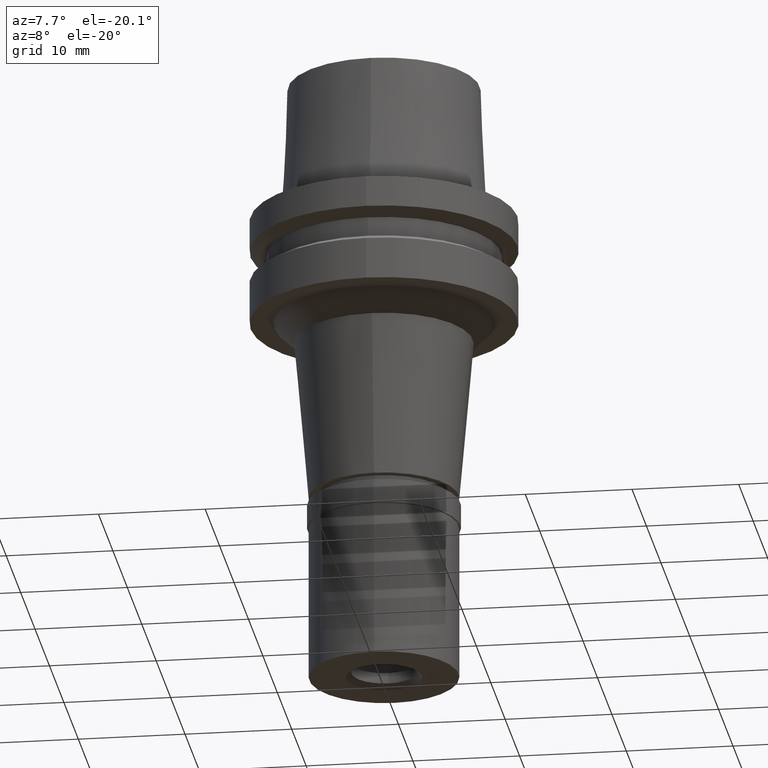
[diagram: clean part render]
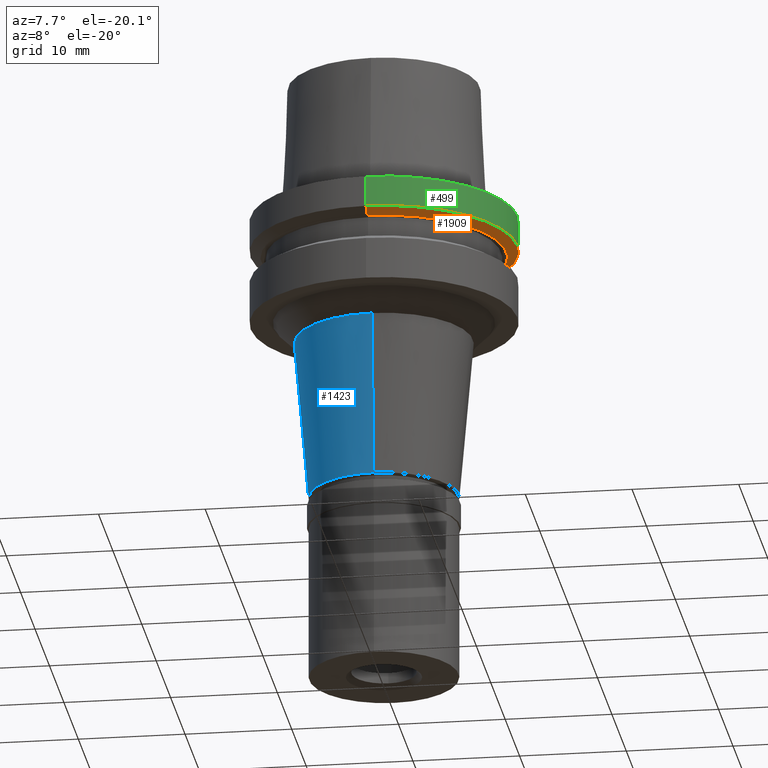
[diagram: same view with three faces highlighted in distinct colors, each labeled with its STEP entity id]
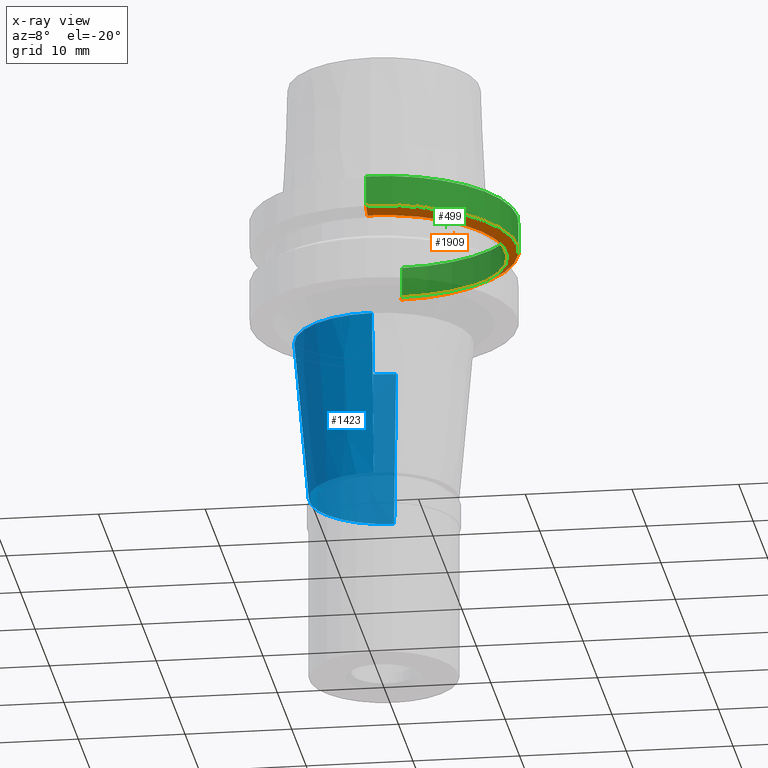
[diagram: x-ray of the same camera — body ghosted, the three highlighted faces saturated]
A machine part, auxiliary view with three faces highlighted in distinct colors.
The next image is the same camera in x-ray (body ghosted, the three faces saturated) — at least one of them is partly hidden behind the body in this view.
Their STEP definitions:

[orange] entity #1909 — the highlighted conical surface has half-angle 60 deg.
#46 = DIRECTION ( 'NONE',  ( 0.0000000000000000000, 1.000000000000000000, 0.0000000000000000000 ) ) ;
#181 = DIRECTION ( 'NONE',  ( 0.0000000000000000000, 0.0000000000000000000, 1.000000000000000000 ) ) ;
#213 = CARTESIAN_POINT ( 'NONE',  ( 0.0000000000000000000, 12.50000000000000000, -2.912286759727999996 ) ) ;
#259 = AXIS2_PLACEMENT_3D ( 'NONE', #2266, #1042, #46 ) ;
#302 = CARTESIAN_POINT ( 'NONE',  ( 0.0000000000000000000, 0.0000000000000000000, -2.912286759726999907 ) ) ;
#322 = DIRECTION ( 'NONE',  ( 0.0000000000000000000, -1.000000000000000000, 0.0000000000000000000 ) ) ;
#496 = DIRECTION ( 'NONE',  ( 0.0000000000000000000, 0.8660254037846089048, -0.4999999999997049027 ) ) ;
#510 = LINE ( 'NONE', #890, #1507 ) ;
#516 = CARTESIAN_POINT ( 'NONE',  ( 0.0000000000000000000, 11.48205080757000118, -3.499999999997999822 ) ) ;
#541 = AXIS2_PLACEMENT_3D ( 'NONE', #302, #1144, #322 ) ;
#740 = EDGE_CURVE ( 'NONE', #1518, #808, #937, .T. ) ;
#761 = CIRCLE ( 'NONE', #1581, 11.48205080757000118 ) ;
#808 = VERTEX_POINT ( 'NONE', #213 ) ;
#819 = FACE_OUTER_BOUND ( 'NONE', #1550, .T. ) ;
#890 = CARTESIAN_POINT ( 'NONE',  ( 0.0000000000000000000, -12.50000000000000000, -2.912286759727999996 ) ) ;
#937 = CIRCLE ( 'NONE', #541, 12.50000000000000000 ) ;
#1042 = DIRECTION ( 'NONE',  ( 0.0000000000000000000, 0.0000000000000000000, 1.000000000000000000 ) ) ;
#1112 = DIRECTION ( 'NONE',  ( 0.0000000000000000000, -0.8660254037846089048, -0.4999999999997049027 ) ) ;
#1144 = DIRECTION ( 'NONE',  ( 0.0000000000000000000, 0.0000000000000000000, 1.000000000000000000 ) ) ;
#1157 = VERTEX_POINT ( 'NONE', #516 ) ;
#1272 = CONICAL_SURFACE ( 'NONE', #259, 11.99102540378000192, 1.047197551196400456 ) ;
#1437 = EDGE_CURVE ( 'NONE', #808, #1157, #1542, .T. ) ;
#1503 = VERTEX_POINT ( 'NONE', #1764 ) ;
#1507 = VECTOR ( 'NONE', #496, 1000.000000000000114 ) ;
#1518 = VERTEX_POINT ( 'NONE', #1718 ) ;
#1542 = LINE ( 'NONE', #2582, #2620 ) ;
#1550 = EDGE_LOOP ( 'NONE', ( #2339, #2365, #1580, #2611 ) ) ;
#1580 = ORIENTED_EDGE ( 'NONE', *, *, #2507, .T. ) ;
#1581 = AXIS2_PLACEMENT_3D ( 'NONE', #2248, #181, #2453 ) ;
#1582 = EDGE_CURVE ( 'NONE', #1518, #1503, #510, .T. ) ;
#1718 = CARTESIAN_POINT ( 'NONE',  ( 0.0000000000000000000, -12.50000000000000000, -2.912286759727999996 ) ) ;
#1764 = CARTESIAN_POINT ( 'NONE',  ( 0.0000000000000000000, -11.48205080757000118, -3.499999999997000177 ) ) ;
#1909 = ADVANCED_FACE ( 'NONE', ( #819 ), #1272, .T. ) ;
#2248 = CARTESIAN_POINT ( 'NONE',  ( 0.0000000000000000000, 0.0000000000000000000, -3.499999999997000177 ) ) ;
#2266 = CARTESIAN_POINT ( 'NONE',  ( 0.0000000000000000000, 0.0000000000000000000, -3.206143379862000042 ) ) ;
#2339 = ORIENTED_EDGE ( 'NONE', *, *, #740, .F. ) ;
#2365 = ORIENTED_EDGE ( 'NONE', *, *, #1582, .T. ) ;
#2453 = DIRECTION ( 'NONE',  ( 0.0000000000000000000, -1.000000000000000000, 0.0000000000000000000 ) ) ;
#2507 = EDGE_CURVE ( 'NONE', #1503, #1157, #761, .T. ) ;
#2582 = CARTESIAN_POINT ( 'NONE',  ( 0.0000000000000000000, 12.50000000000000000, -2.912286759727999996 ) ) ;
#2611 = ORIENTED_EDGE ( 'NONE', *, *, #1437, .F. ) ;
#2620 = VECTOR ( 'NONE', #1112, 1000.000000000000114 ) ;

[blue] entity #1423 — the highlighted conical surface has half-angle 5 deg.
#50 = LINE ( 'NONE', #1861, #1609 ) ;
#137 = DIRECTION ( 'NONE',  ( 0.0000000000000000000, -1.000000000000000000, 0.0000000000000000000 ) ) ;
#266 = DIRECTION ( 'NONE',  ( 0.0000000000000000000, 0.0000000000000000000, 1.000000000000000000 ) ) ;
#272 = CARTESIAN_POINT ( 'NONE',  ( 0.0000000000000000000, 7.000000000000000000, -27.30000000000000071 ) ) ;
#333 = DIRECTION ( 'NONE',  ( 0.0000000000000000000, -0.08715574274767391716, -0.9961946980917442129 ) ) ;
#357 = VECTOR ( 'NONE', #333, 1000.000000000000000 ) ;
#431 = ORIENTED_EDGE ( 'NONE', *, *, #2188, .T. ) ;
#477 = VERTEX_POINT ( 'NONE', #272 ) ;
#535 = DIRECTION ( 'NONE',  ( 0.0000000000000000000, 1.000000000000000000, 0.0000000000000000000 ) ) ;
#558 = DIRECTION ( 'NONE',  ( 0.0000000000000000000, 0.0000000000000000000, 1.000000000000000000 ) ) ;
#599 = DIRECTION ( 'NONE',  ( 0.0000000000000000000, 1.000000000000000000, 0.0000000000000000000 ) ) ;
#618 = CONICAL_SURFACE ( 'NONE', #1185, 7.669288275972999891, 0.08726646259969973729 ) ;
#736 = FACE_OUTER_BOUND ( 'NONE', #821, .T. ) ;
#755 = CARTESIAN_POINT ( 'NONE',  ( 0.0000000000000000000, 8.338576551946999871, -12.00000000000000000 ) ) ;
#774 = VERTEX_POINT ( 'NONE', #1643 ) ;
#793 = CARTESIAN_POINT ( 'NONE',  ( 0.0000000000000000000, 0.0000000000000000000, -12.00000000000000000 ) ) ;
#821 = EDGE_LOOP ( 'NONE', ( #2540, #1439, #2100, #431 ) ) ;
#1055 = AXIS2_PLACEMENT_3D ( 'NONE', #793, #2001, #137 ) ;
#1185 = AXIS2_PLACEMENT_3D ( 'NONE', #1748, #266, #535 ) ;
#1191 = CARTESIAN_POINT ( 'NONE',  ( 0.0000000000000000000, 8.338576551946999871, -12.00000000000000000 ) ) ;
#1264 = EDGE_CURVE ( 'NONE', #774, #1843, #50, .T. ) ;
#1353 = CIRCLE ( 'NONE', #1055, 8.338576551946999871 ) ;
#1423 = ADVANCED_FACE ( 'NONE', ( #736 ), #618, .T. ) ;
#1439 = ORIENTED_EDGE ( 'NONE', *, *, #1264, .F. ) ;
#1609 = VECTOR ( 'NONE', #2079, 1000.000000000000000 ) ;
#1643 = CARTESIAN_POINT ( 'NONE',  ( 0.0000000000000000000, -8.338576551946999871, -12.00000000000000000 ) ) ;
#1682 = AXIS2_PLACEMENT_3D ( 'NONE', #2436, #558, #599 ) ;
#1709 = EDGE_CURVE ( 'NONE', #774, #1768, #1353, .T. ) ;
#1748 = CARTESIAN_POINT ( 'NONE',  ( 0.0000000000000000000, 0.0000000000000000000, -19.65000000000000213 ) ) ;
#1767 = LINE ( 'NONE', #755, #357 ) ;
#1768 = VERTEX_POINT ( 'NONE', #1191 ) ;
#1843 = VERTEX_POINT ( 'NONE', #2510 ) ;
#1861 = CARTESIAN_POINT ( 'NONE',  ( 0.0000000000000000000, -8.338576551946999871, -12.00000000000000000 ) ) ;
#2001 = DIRECTION ( 'NONE',  ( 0.0000000000000000000, 0.0000000000000000000, -1.000000000000000000 ) ) ;
#2033 = CIRCLE ( 'NONE', #1682, 7.000000000000000000 ) ;
#2079 = DIRECTION ( 'NONE',  ( 0.0000000000000000000, 0.08715574274767391716, -0.9961946980917442129 ) ) ;
#2100 = ORIENTED_EDGE ( 'NONE', *, *, #1709, .T. ) ;
#2188 = EDGE_CURVE ( 'NONE', #1768, #477, #1767, .T. ) ;
#2380 = EDGE_CURVE ( 'NONE', #477, #1843, #2033, .T. ) ;
#2436 = CARTESIAN_POINT ( 'NONE',  ( 0.0000000000000000000, 0.0000000000000000000, -27.30000000000000071 ) ) ;
#2510 = CARTESIAN_POINT ( 'NONE',  ( 0.0000000000000000000, -7.000000000000000000, -27.30000000000000071 ) ) ;
#2540 = ORIENTED_EDGE ( 'NONE', *, *, #2380, .T. ) ;

[green] entity #499 — the highlighted cylindrical surface (partial cylindrical patch) has radius 12.5 mm, axis along (0, 0, 1).
#41 = FACE_OUTER_BOUND ( 'NONE', #925, .T. ) ;
#54 = CARTESIAN_POINT ( 'NONE',  ( 0.0000000000000000000, 0.0000000000000000000, -43.70000000000000284 ) ) ;
#213 = CARTESIAN_POINT ( 'NONE',  ( 0.0000000000000000000, 12.50000000000000000, -2.912286759727999996 ) ) ;
#302 = CARTESIAN_POINT ( 'NONE',  ( 0.0000000000000000000, 0.0000000000000000000, -2.912286759726999907 ) ) ;
#322 = DIRECTION ( 'NONE',  ( 0.0000000000000000000, -1.000000000000000000, 0.0000000000000000000 ) ) ;
#461 = CYLINDRICAL_SURFACE ( 'NONE', #2047, 12.50000000000000000 ) ;
#499 = ADVANCED_FACE ( 'NONE', ( #41 ), #461, .T. ) ;
#526 = AXIS2_PLACEMENT_3D ( 'NONE', #1139, #2162, #1170 ) ;
#541 = AXIS2_PLACEMENT_3D ( 'NONE', #302, #1144, #322 ) ;
#632 = ORIENTED_EDGE ( 'NONE', *, *, #740, .T. ) ;
#740 = EDGE_CURVE ( 'NONE', #1518, #808, #937, .T. ) ;
#743 = ORIENTED_EDGE ( 'NONE', *, *, #2027, .F. ) ;
#757 = EDGE_CURVE ( 'NONE', #2019, #1518, #1412, .T. ) ;
#759 = VERTEX_POINT ( 'NONE', #824 ) ;
#787 = CIRCLE ( 'NONE', #526, 12.50000000000000000 ) ;
#808 = VERTEX_POINT ( 'NONE', #213 ) ;
#812 = DIRECTION ( 'NONE',  ( 0.0000000000000000000, 2.445909868662999674E-13, -1.000000000000000000 ) ) ;
#824 = CARTESIAN_POINT ( 'NONE',  ( 0.0000000000000000000, 12.50000000000000000, 3.552713678800999489E-14 ) ) ;
#882 = DIRECTION ( 'NONE',  ( 0.0000000000000000000, 0.0000000000000000000, 1.000000000000000000 ) ) ;
#925 = EDGE_LOOP ( 'NONE', ( #1346, #1770, #632, #743 ) ) ;
#937 = CIRCLE ( 'NONE', #541, 12.50000000000000000 ) ;
#1139 = CARTESIAN_POINT ( 'NONE',  ( 0.0000000000000000000, 0.0000000000000000000, 3.552713678800999489E-14 ) ) ;
#1144 = DIRECTION ( 'NONE',  ( 0.0000000000000000000, 0.0000000000000000000, 1.000000000000000000 ) ) ;
#1170 = DIRECTION ( 'NONE',  ( 0.0000000000000000000, 1.000000000000000000, 0.0000000000000000000 ) ) ;
#1346 = ORIENTED_EDGE ( 'NONE', *, *, #1497, .T. ) ;
#1412 = LINE ( 'NONE', #1837, #2678 ) ;
#1473 = LINE ( 'NONE', #2120, #2087 ) ;
#1497 = EDGE_CURVE ( 'NONE', #759, #2019, #787, .T. ) ;
#1501 = DIRECTION ( 'NONE',  ( 0.0000000000000000000, -2.445909868662999674E-13, -1.000000000000000000 ) ) ;
#1518 = VERTEX_POINT ( 'NONE', #1718 ) ;
#1718 = CARTESIAN_POINT ( 'NONE',  ( 0.0000000000000000000, -12.50000000000000000, -2.912286759727999996 ) ) ;
#1770 = ORIENTED_EDGE ( 'NONE', *, *, #757, .T. ) ;
#1837 = CARTESIAN_POINT ( 'NONE',  ( 0.0000000000000000000, -12.50000000000000000, 2.368475785866999778E-14 ) ) ;
#2019 = VERTEX_POINT ( 'NONE', #2110 ) ;
#2027 = EDGE_CURVE ( 'NONE', #759, #808, #1473, .T. ) ;
#2047 = AXIS2_PLACEMENT_3D ( 'NONE', #54, #882, #2121 ) ;
#2087 = VECTOR ( 'NONE', #1501, 1000.000000000000000 ) ;
#2110 = CARTESIAN_POINT ( 'NONE',  ( 0.0000000000000000000, -12.50000000000000000, 3.552713678800999489E-14 ) ) ;
#2120 = CARTESIAN_POINT ( 'NONE',  ( 0.0000000000000000000, 12.50000000000000000, 2.368475785866999778E-14 ) ) ;
#2121 = DIRECTION ( 'NONE',  ( 0.0000000000000000000, 1.000000000000000000, 0.0000000000000000000 ) ) ;
#2162 = DIRECTION ( 'NONE',  ( 0.0000000000000000000, 0.0000000000000000000, -1.000000000000000000 ) ) ;
#2678 = VECTOR ( 'NONE', #812, 1000.000000000000000 ) ;